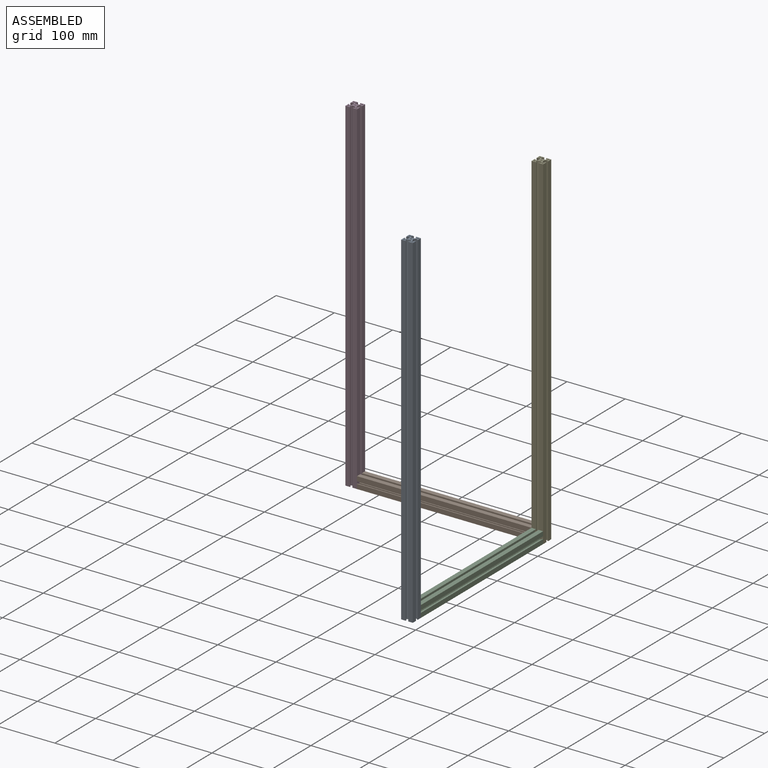
[diagram: assembled view]
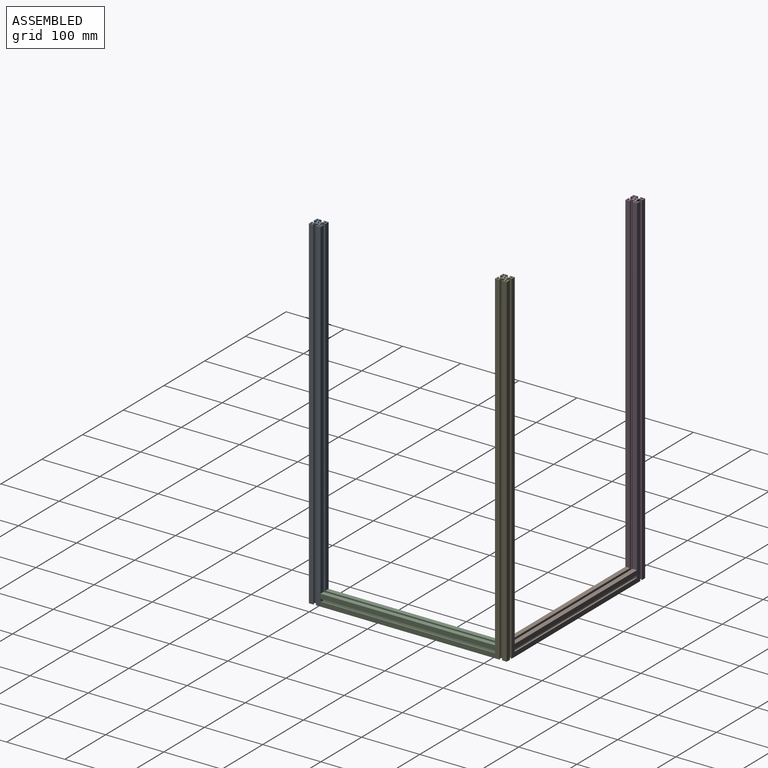
[diagram: assembled view, second angle]
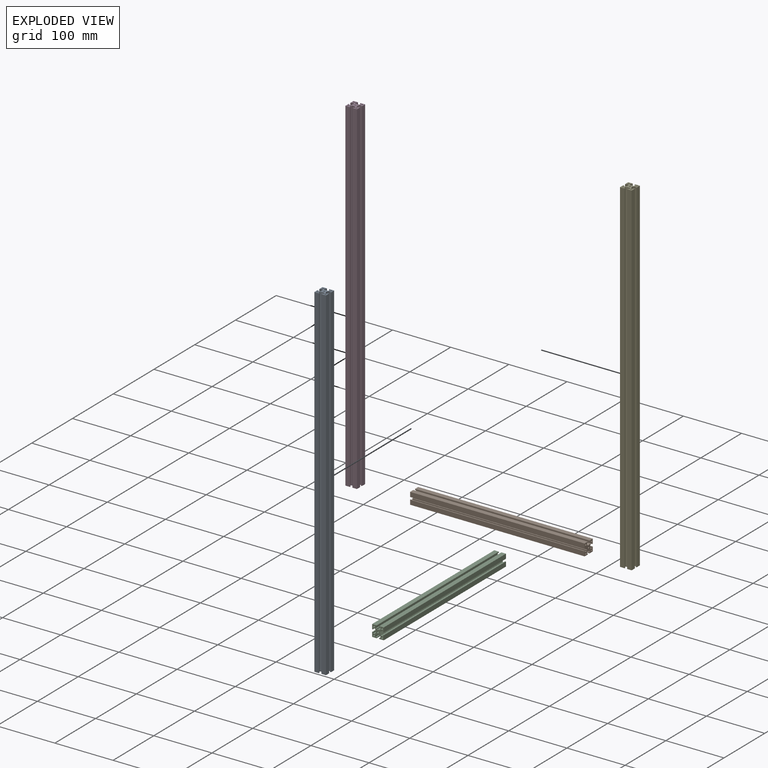
[diagram: exploded view]
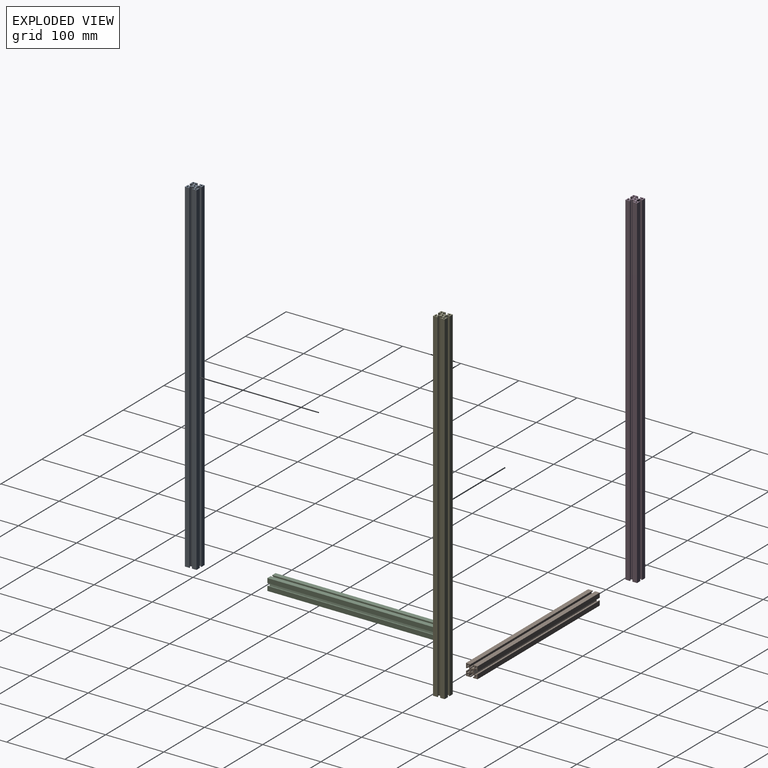
[diagram: exploded view, second angle]
ASSEMBLY  parts=5 mates=12
PART A: 51 faces, bbox 20x20x590 mm
  f0: plane 590x7.85mm, normal (1,0,0), area 4631.5mm2, adj f1,f47,f49,f50
  f1: plane 590x7.85mm, normal (0,1,0), area 4631.5mm2, adj f0,f2,f49,f50
  f2: plane 590x1.5mm, normal (-1,0,0), area 885mm2, adj f1,f3,f49,f50
  f3: plane 590x2mm, normal (0,-1,0), area 1180mm2, adj f2,f4,f49,f50
  f4: plane 590x3.7mm, normal (-1,0,0), area 2183mm2, adj f3,f5,f49,f50
  f5: plane 590x6.3mm, normal (-0.23,0.97,0), area 3820.9mm2, adj f4,f6,f49,f50
  f6: plane 590x1.5mm, normal (1,0,0), area 885mm2, adj f5,f7,f49,f50
  f7: plane 590x2mm, normal (0,1,0), area 1180mm2, adj f6,f8,f49,f50
  f8: plane 590x3.7mm, normal (1,0,0), area 2183mm2, adj f7,f9,f49,f50
  f9: plane 590x2mm, normal (0,-1,0), area 1180mm2, adj f8,f10,f49,f50
  f10: plane 590x1.5mm, normal (1,0,0), area 885mm2, adj f9,f11,f49,f50
  f11: plane 590x7.85mm, normal (0,1,0), area 4631.5mm2, adj f10,f12,f49,f50
  f12: plane 590x7.85mm, normal (-1,0,0), area 4631.5mm2, adj f11,f13,f49,f50
  f13: plane 590x1.5mm, normal (0,-1,0), area 885mm2, adj f12,f14,f49,f50
  f14: plane 590x2mm, normal (1,0,0), area 1180mm2, adj f13,f15,f49,f50
  f15: plane 590x3.7mm, normal (0,-1,0), area 2183mm2, adj f14,f16,f49,f50
  f16: plane 590x6.3mm, normal (-0.97,-0.23,0), area 3820.9mm2, adj f15,f17,f49,f50
  f17: plane 590x1.5mm, normal (0,1,0), area 885mm2, adj f16,f18,f49,f50
  f18: plane 590x2mm, normal (-1,0,0), area 1180mm2, adj f17,f19,f49,f50
  f19: plane 590x3.7mm, normal (0,1,0), area 2183mm2, adj f18,f20,f49,f50
  f20: plane 590x2mm, normal (1,0,0), area 1180mm2, adj f19,f21,f49,f50
  f21: plane 590x1.5mm, normal (0,1,0), area 885mm2, adj f20,f22,f49,f50
  f22: plane 590x7.85mm, normal (-1,0,0), area 4631.5mm2, adj f21,f23,f49,f50
  f23: plane 590x7.85mm, normal (0,-1,0), area 4631.5mm2, adj f22,f24,f49,f50
  f24: plane 590x1.5mm, normal (1,0,0), area 885mm2, adj f23,f25,f49,f50
  f25: plane 590x2mm, normal (0,1,0), area 1180mm2, adj f24,f26,f49,f50
  f26: plane 590x3.7mm, normal (1,0,0), area 2183mm2, adj f25,f27,f49,f50
  f27: plane 590x6.3mm, normal (0.23,-0.97,0), area 3820.9mm2, adj f26,f28,f49,f50
  f28: plane 590x1.5mm, normal (-1,0,0), area 885mm2, adj f27,f29,f49,f50
  f29: plane 590x2mm, normal (0,-1,0), area 1180mm2, adj f28,f30,f49,f50
  f30: plane 590x3.7mm, normal (-1,0,0), area 2183mm2, adj f29,f31,f49,f50
  f31: plane 590x2mm, normal (0,1,0), area 1180mm2, adj f30,f32,f49,f50
  f32: plane 590x1.5mm, normal (-1,0,0), area 885mm2, adj f31,f33,f49,f50
  f33: plane 590x7.85mm, normal (0,-1,0), area 4631.5mm2, adj f32,f34,f49,f50
  f34: plane 590x7.85mm, normal (1,0,0), area 4631.5mm2, adj f33,f35,f49,f50
  f35: plane 590x1.5mm, normal (0,1,0), area 885mm2, adj f34,f36,f49,f50
  f36: plane 590x2mm, normal (-1,0,0), area 1180mm2, adj f35,f37,f49,f50
  f37: plane 590x3.7mm, normal (0,1,0), area 2183mm2, adj f36,f38,f49,f50
  f38: plane 590x6.3mm, normal (0.97,0.23,0), area 3820.9mm2, adj f37,f39,f49,f50
  f39: plane 590x1.5mm, normal (0,-1,0), area 885mm2, adj f38,f40,f49,f50
  f40: plane 590x2mm, normal (1,0,0), area 1180mm2, adj f39,f41,f49,f50
  f41: plane 590x3.7mm, normal (0,-1,0), area 2183mm2, adj f40,f42,f49,f50
  f42: plane 590x2mm, normal (-1,0,0), area 1180mm2, adj f41,f47,f49,f50
  f43: cylinder r=1.5mm len=590mm, axis (0,0,-1), area 5560.6mm2, adj f49,f50
  f44: cylinder r=1.5mm len=590mm, axis (0,0,-1), area 5560.6mm2, adj f49,f50
  f45: cylinder r=1.5mm len=590mm, axis (0,0,-1), area 5560.6mm2, adj f49,f50
  f46: cylinder r=1.5mm len=590mm, axis (0,0,-1), area 5560.6mm2, adj f49,f50
  f47: plane 590x1.5mm, normal (0,-1,0), area 885mm2, adj f0,f42,f49,f50
  f48: cylinder r=1.5mm len=590mm, axis (0,0,-1), area 5560.6mm2, adj f49,f50
  f49: plane 20x20mm, normal (0,0,1), area 197.1mm2, adj f0,f1,f2,f3,f4,f5,f6,f7
  f50: plane 20x20mm, normal (0,0,-1), area 197.1mm2, adj f0,f1,f2,f3,f4,f5,f6,f7
PART B: 51 faces, bbox 20x20x300 mm
  f0: plane 300x7.85mm, normal (1,0,0), area 2355mm2, adj f1,f47,f49,f50
  f1: plane 300x7.85mm, normal (0,1,0), area 2355mm2, adj f0,f2,f49,f50
  f2: plane 300x1.5mm, normal (-1,0,0), area 450mm2, adj f1,f3,f49,f50
  f3: plane 300x2mm, normal (0,-1,0), area 600mm2, adj f2,f4,f49,f50
  f4: plane 300x3.7mm, normal (-1,0,0), area 1110mm2, adj f3,f5,f49,f50
  f5: plane 300x6.3mm, normal (-0.23,0.97,0), area 1942.8mm2, adj f4,f6,f49,f50
  f6: plane 300x1.5mm, normal (1,0,0), area 450mm2, adj f5,f7,f49,f50
  f7: plane 300x2mm, normal (0,1,0), area 600mm2, adj f6,f8,f49,f50
  f8: plane 300x3.7mm, normal (1,0,0), area 1110mm2, adj f7,f9,f49,f50
  f9: plane 300x2mm, normal (0,-1,0), area 600mm2, adj f8,f10,f49,f50
  f10: plane 300x1.5mm, normal (1,0,0), area 450mm2, adj f9,f11,f49,f50
  f11: plane 300x7.85mm, normal (0,1,0), area 2355mm2, adj f10,f12,f49,f50
  f12: plane 300x7.85mm, normal (-1,0,0), area 2355mm2, adj f11,f13,f49,f50
  f13: plane 300x1.5mm, normal (0,-1,0), area 450mm2, adj f12,f14,f49,f50
  f14: plane 300x2mm, normal (1,0,0), area 600mm2, adj f13,f15,f49,f50
  f15: plane 300x3.7mm, normal (0,-1,0), area 1110mm2, adj f14,f16,f49,f50
  f16: plane 300x6.3mm, normal (-0.97,-0.23,0), area 1942.8mm2, adj f15,f17,f49,f50
  f17: plane 300x1.5mm, normal (0,1,0), area 450mm2, adj f16,f18,f49,f50
  f18: plane 300x2mm, normal (-1,0,0), area 600mm2, adj f17,f19,f49,f50
  f19: plane 300x3.7mm, normal (0,1,0), area 1110mm2, adj f18,f20,f49,f50
  f20: plane 300x2mm, normal (1,0,0), area 600mm2, adj f19,f21,f49,f50
  f21: plane 300x1.5mm, normal (0,1,0), area 450mm2, adj f20,f22,f49,f50
  f22: plane 300x7.85mm, normal (-1,0,0), area 2355mm2, adj f21,f23,f49,f50
  f23: plane 300x7.85mm, normal (0,-1,0), area 2355mm2, adj f22,f24,f49,f50
  f24: plane 300x1.5mm, normal (1,0,0), area 450mm2, adj f23,f25,f49,f50
  f25: plane 300x2mm, normal (0,1,0), area 600mm2, adj f24,f26,f49,f50
  f26: plane 300x3.7mm, normal (1,0,0), area 1110mm2, adj f25,f27,f49,f50
  f27: plane 300x6.3mm, normal (0.23,-0.97,0), area 1942.8mm2, adj f26,f28,f49,f50
  f28: plane 300x1.5mm, normal (-1,0,0), area 450mm2, adj f27,f29,f49,f50
  f29: plane 300x2mm, normal (0,-1,0), area 600mm2, adj f28,f30,f49,f50
  f30: plane 300x3.7mm, normal (-1,0,0), area 1110mm2, adj f29,f31,f49,f50
  f31: plane 300x2mm, normal (0,1,0), area 600mm2, adj f30,f32,f49,f50
  f32: plane 300x1.5mm, normal (-1,0,0), area 450mm2, adj f31,f33,f49,f50
  f33: plane 300x7.85mm, normal (0,-1,0), area 2355mm2, adj f32,f34,f49,f50
  f34: plane 300x7.85mm, normal (1,0,0), area 2355mm2, adj f33,f35,f49,f50
  f35: plane 300x1.5mm, normal (0,1,0), area 450mm2, adj f34,f36,f49,f50
  f36: plane 300x2mm, normal (-1,0,0), area 600mm2, adj f35,f37,f49,f50
  f37: plane 300x3.7mm, normal (0,1,0), area 1110mm2, adj f36,f38,f49,f50
  f38: plane 300x6.3mm, normal (0.97,0.23,0), area 1942.8mm2, adj f37,f39,f49,f50
  f39: plane 300x1.5mm, normal (0,-1,0), area 450mm2, adj f38,f40,f49,f50
  f40: plane 300x2mm, normal (1,0,0), area 600mm2, adj f39,f41,f49,f50
  f41: plane 300x3.7mm, normal (0,-1,0), area 1110mm2, adj f40,f42,f49,f50
  f42: plane 300x2mm, normal (-1,0,0), area 600mm2, adj f41,f47,f49,f50
  f43: cylinder r=1.5mm len=300mm, axis (0,0,-1), area 2827.4mm2, adj f49,f50
  f44: cylinder r=1.5mm len=300mm, axis (0,0,-1), area 2827.4mm2, adj f49,f50
  f45: cylinder r=1.5mm len=300mm, axis (0,0,-1), area 2827.4mm2, adj f49,f50
  f46: cylinder r=1.5mm len=300mm, axis (0,0,-1), area 2827.4mm2, adj f49,f50
  f47: plane 300x1.5mm, normal (0,-1,0), area 450mm2, adj f0,f42,f49,f50
  f48: cylinder r=1.5mm len=300mm, axis (0,0,-1), area 2827.4mm2, adj f49,f50
  f49: plane 20x20mm, normal (0,0,1), area 197.1mm2, adj f0,f1,f2,f3,f4,f5,f6,f7
  f50: plane 20x20mm, normal (0,0,-1), area 197.1mm2, adj f0,f1,f2,f3,f4,f5,f6,f7
PART C: same geometry as B
PART D: 51 faces, bbox 20x20x590 mm
  f0: plane 590x7.85mm, normal (1,0,0), area 4631.5mm2, adj f1,f47,f49,f50
  f1: plane 590x7.85mm, normal (0,1,0), area 4631.5mm2, adj f0,f2,f49,f50
  f2: plane 590x1.5mm, normal (-1,0,0), area 885mm2, adj f1,f3,f49,f50
  f3: plane 590x2mm, normal (0,-1,0), area 1180mm2, adj f2,f4,f49,f50
  f4: plane 590x3.7mm, normal (-1,0,0), area 2183mm2, adj f3,f5,f49,f50
  f5: plane 590x6.3mm, normal (-0.23,0.97,0), area 3820.9mm2, adj f4,f6,f49,f50
  f6: plane 590x1.5mm, normal (1,0,0), area 885mm2, adj f5,f7,f49,f50
  f7: plane 590x2mm, normal (0,1,0), area 1180mm2, adj f6,f8,f49,f50
  f8: plane 590x3.7mm, normal (1,0,0), area 2183mm2, adj f7,f9,f49,f50
  f9: plane 590x2mm, normal (0,-1,0), area 1180mm2, adj f8,f10,f49,f50
  f10: plane 590x1.5mm, normal (1,0,0), area 885mm2, adj f9,f11,f49,f50
  f11: plane 590x7.85mm, normal (0,1,0), area 4631.5mm2, adj f10,f12,f49,f50
  f12: plane 590x7.85mm, normal (-1,0,0), area 4631.5mm2, adj f11,f13,f49,f50
  f13: plane 590x1.5mm, normal (0,-1,0), area 885mm2, adj f12,f14,f49,f50
  f14: plane 590x2mm, normal (1,0,0), area 1180mm2, adj f13,f15,f49,f50
  f15: plane 590x3.7mm, normal (0,-1,0), area 2183mm2, adj f14,f16,f49,f50
  f16: plane 590x6.3mm, normal (-0.97,-0.23,0), area 3820.9mm2, adj f15,f17,f49,f50
  f17: plane 590x1.5mm, normal (0,1,0), area 885mm2, adj f16,f18,f49,f50
  f18: plane 590x2mm, normal (-1,0,0), area 1180mm2, adj f17,f19,f49,f50
  f19: plane 590x3.7mm, normal (0,1,0), area 2183mm2, adj f18,f20,f49,f50
  f20: plane 590x2mm, normal (1,0,0), area 1180mm2, adj f19,f21,f49,f50
  f21: plane 590x1.5mm, normal (0,1,0), area 885mm2, adj f20,f22,f49,f50
  f22: plane 590x7.85mm, normal (-1,0,0), area 4631.5mm2, adj f21,f23,f49,f50
  f23: plane 590x7.85mm, normal (0,-1,0), area 4631.5mm2, adj f22,f24,f49,f50
  f24: plane 590x1.5mm, normal (1,0,0), area 885mm2, adj f23,f25,f49,f50
  f25: plane 590x2mm, normal (0,1,0), area 1180mm2, adj f24,f26,f49,f50
  f26: plane 590x3.7mm, normal (1,0,0), area 2183mm2, adj f25,f27,f49,f50
  f27: plane 590x6.3mm, normal (0.23,-0.97,0), area 3820.9mm2, adj f26,f28,f49,f50
  f28: plane 590x1.5mm, normal (-1,0,0), area 885mm2, adj f27,f29,f49,f50
  f29: plane 590x2mm, normal (0,-1,0), area 1180mm2, adj f28,f30,f49,f50
  f30: plane 590x3.7mm, normal (-1,0,0), area 2183mm2, adj f29,f31,f49,f50
  f31: plane 590x2mm, normal (0,1,0), area 1180mm2, adj f30,f32,f49,f50
  f32: plane 590x1.5mm, normal (-1,0,0), area 885mm2, adj f31,f33,f49,f50
  f33: plane 590x7.85mm, normal (0,-1,0), area 4631.5mm2, adj f32,f34,f49,f50
  f34: plane 590x7.85mm, normal (1,0,0), area 4631.5mm2, adj f33,f35,f49,f50
  f35: plane 590x1.5mm, normal (0,1,0), area 885mm2, adj f34,f36,f49,f50
  f36: plane 590x2mm, normal (-1,0,0), area 1180mm2, adj f35,f37,f49,f50
  f37: plane 590x3.7mm, normal (0,1,0), area 2183mm2, adj f36,f38,f49,f50
  f38: plane 590x6.3mm, normal (0.97,0.23,0), area 3820.9mm2, adj f37,f39,f49,f50
  f39: plane 590x1.5mm, normal (0,-1,0), area 885mm2, adj f38,f40,f49,f50
  f40: plane 590x2mm, normal (1,0,0), area 1180mm2, adj f39,f41,f49,f50
  f41: plane 590x3.7mm, normal (0,-1,0), area 2183mm2, adj f40,f42,f49,f50
  f42: plane 590x2mm, normal (-1,0,0), area 1180mm2, adj f41,f47,f49,f50
  f43: cylinder r=1.5mm len=590mm, axis (0,0,-1), area 5560.6mm2, adj f49,f50
  f44: cylinder r=1.5mm len=590mm, axis (0,0,-1), area 5560.6mm2, adj f49,f50
  f45: cylinder r=1.5mm len=590mm, axis (0,0,-1), area 5560.6mm2, adj f49,f50
  f46: cylinder r=1.5mm len=590mm, axis (0,0,-1), area 5560.6mm2, adj f49,f50
  f47: plane 590x1.5mm, normal (0,-1,0), area 885mm2, adj f0,f42,f49,f50
  f48: cylinder r=1.5mm len=590mm, axis (0,0,-1), area 5560.6mm2, adj f49,f50
  f49: plane 20x20mm, normal (0,0,1), area 197.1mm2, adj f0,f1,f2,f3,f4,f5,f6,f7
  f50: plane 20x20mm, normal (0,0,-1), area 197.1mm2, adj f0,f1,f2,f3,f4,f5,f6,f7
PART E: 51 faces, bbox 20x20x590 mm
  f0: plane 590x7.85mm, normal (1,0,0), area 4631.5mm2, adj f1,f47,f49,f50
  f1: plane 590x7.85mm, normal (0,1,0), area 4631.5mm2, adj f0,f2,f49,f50
  f2: plane 590x1.5mm, normal (-1,0,0), area 885mm2, adj f1,f3,f49,f50
  f3: plane 590x2mm, normal (0,-1,0), area 1180mm2, adj f2,f4,f49,f50
  f4: plane 590x3.7mm, normal (-1,0,0), area 2183mm2, adj f3,f5,f49,f50
  f5: plane 590x6.3mm, normal (-0.23,0.97,0), area 3820.9mm2, adj f4,f6,f49,f50
  f6: plane 590x1.5mm, normal (1,0,0), area 885mm2, adj f5,f7,f49,f50
  f7: plane 590x2mm, normal (0,1,0), area 1180mm2, adj f6,f8,f49,f50
  f8: plane 590x3.7mm, normal (1,0,0), area 2183mm2, adj f7,f9,f49,f50
  f9: plane 590x2mm, normal (0,-1,0), area 1180mm2, adj f8,f10,f49,f50
  f10: plane 590x1.5mm, normal (1,0,0), area 885mm2, adj f9,f11,f49,f50
  f11: plane 590x7.85mm, normal (0,1,0), area 4631.5mm2, adj f10,f12,f49,f50
  f12: plane 590x7.85mm, normal (-1,0,0), area 4631.5mm2, adj f11,f13,f49,f50
  f13: plane 590x1.5mm, normal (0,-1,0), area 885mm2, adj f12,f14,f49,f50
  f14: plane 590x2mm, normal (1,0,0), area 1180mm2, adj f13,f15,f49,f50
  f15: plane 590x3.7mm, normal (0,-1,0), area 2183mm2, adj f14,f16,f49,f50
  f16: plane 590x6.3mm, normal (-0.97,-0.23,0), area 3820.9mm2, adj f15,f17,f49,f50
  f17: plane 590x1.5mm, normal (0,1,0), area 885mm2, adj f16,f18,f49,f50
  f18: plane 590x2mm, normal (-1,0,0), area 1180mm2, adj f17,f19,f49,f50
  f19: plane 590x3.7mm, normal (0,1,0), area 2183mm2, adj f18,f20,f49,f50
  f20: plane 590x2mm, normal (1,0,0), area 1180mm2, adj f19,f21,f49,f50
  f21: plane 590x1.5mm, normal (0,1,0), area 885mm2, adj f20,f22,f49,f50
  f22: plane 590x7.85mm, normal (-1,0,0), area 4631.5mm2, adj f21,f23,f49,f50
  f23: plane 590x7.85mm, normal (0,-1,0), area 4631.5mm2, adj f22,f24,f49,f50
  f24: plane 590x1.5mm, normal (1,0,0), area 885mm2, adj f23,f25,f49,f50
  f25: plane 590x2mm, normal (0,1,0), area 1180mm2, adj f24,f26,f49,f50
  f26: plane 590x3.7mm, normal (1,0,0), area 2183mm2, adj f25,f27,f49,f50
  f27: plane 590x6.3mm, normal (0.23,-0.97,0), area 3820.9mm2, adj f26,f28,f49,f50
  f28: plane 590x1.5mm, normal (-1,0,0), area 885mm2, adj f27,f29,f49,f50
  f29: plane 590x2mm, normal (0,-1,0), area 1180mm2, adj f28,f30,f49,f50
  f30: plane 590x3.7mm, normal (-1,0,0), area 2183mm2, adj f29,f31,f49,f50
  f31: plane 590x2mm, normal (0,1,0), area 1180mm2, adj f30,f32,f49,f50
  f32: plane 590x1.5mm, normal (-1,0,0), area 885mm2, adj f31,f33,f49,f50
  f33: plane 590x7.85mm, normal (0,-1,0), area 4631.5mm2, adj f32,f34,f49,f50
  f34: plane 590x7.85mm, normal (1,0,0), area 4631.5mm2, adj f33,f35,f49,f50
  f35: plane 590x1.5mm, normal (0,1,0), area 885mm2, adj f34,f36,f49,f50
  f36: plane 590x2mm, normal (-1,0,0), area 1180mm2, adj f35,f37,f49,f50
  f37: plane 590x3.7mm, normal (0,1,0), area 2183mm2, adj f36,f38,f49,f50
  f38: plane 590x6.3mm, normal (0.97,0.23,0), area 3820.9mm2, adj f37,f39,f49,f50
  f39: plane 590x1.5mm, normal (0,-1,0), area 885mm2, adj f38,f40,f49,f50
  f40: plane 590x2mm, normal (1,0,0), area 1180mm2, adj f39,f41,f49,f50
  f41: plane 590x3.7mm, normal (0,-1,0), area 2183mm2, adj f40,f42,f49,f50
  f42: plane 590x2mm, normal (-1,0,0), area 1180mm2, adj f41,f47,f49,f50
  f43: cylinder r=1.5mm len=590mm, axis (0,0,-1), area 5560.6mm2, adj f49,f50
  f44: cylinder r=1.5mm len=590mm, axis (0,0,-1), area 5560.6mm2, adj f49,f50
  f45: cylinder r=1.5mm len=590mm, axis (0,0,-1), area 5560.6mm2, adj f49,f50
  f46: cylinder r=1.5mm len=590mm, axis (0,0,-1), area 5560.6mm2, adj f49,f50
  f47: plane 590x1.5mm, normal (0,-1,0), area 885mm2, adj f0,f42,f49,f50
  f48: cylinder r=1.5mm len=590mm, axis (0,0,-1), area 5560.6mm2, adj f49,f50
  f49: plane 20x20mm, normal (0,0,1), area 197.1mm2, adj f0,f1,f2,f3,f4,f5,f6,f7
  f50: plane 20x20mm, normal (0,0,-1), area 197.1mm2, adj f0,f1,f2,f3,f4,f5,f6,f7
PLACE A rot(axis=(0.15,0.76,0.63),0deg) t=(87.06,-392.79,283.51)mm
PLACE B rot(axis=(0,1,0),90deg) t=(77.06,-72.91,293.53)mm
PLACE C rot(axis=(1,0,0),90deg) t=(387.04,-82.79,293.39)mm
PLACE D rot(axis=(0,-1,0),180deg) t=(67.06,-372.79,873.51)mm
PLACE E rot(axis=(0.15,0.76,0.63),0deg) t=(387.06,-72.79,283.51)mm
MATE planar D.f48 <-> B.f0  axis (0,0,-1) through (67.06,-72.79,283.51)mm
MATE planar B.f49 <-> E.f12  axis (1,0,0) through (377.06,-69.49,295.66)mm
MATE planar C.f34 <-> A.f0  axis (1,0,0) through (397.06,-232.79,287.43)mm
MATE planar E.f50 <-> B.f0  axis (0,0,-1) through (388.06,-68.74,283.51)mm
MATE planar E.f34 <-> C.f34  axis (1,0,0) through (397.06,-78.87,578.51)mm
MATE planar C.f48 <-> A.f11  axis (0,-1,0) through (387.06,-382.79,293.51)mm
MATE planar D.f12 <-> B.f48  axis (1,0,0) through (77.06,-66.72,578.51)mm
MATE planar C.f23 <-> E.f48  axis (0,0,-1) through (380.98,-232.79,283.51)mm
MATE planar E.f33 <-> B.f23  axis (0,-1,0) through (393.13,-82.79,578.51)mm
MATE planar D.f11 <-> B.f1  axis (0,1,0) through (73.13,-62.79,578.51)mm
MATE planar A.f50 <-> C.f23  axis (0,0,-1) through (383.01,-391.79,283.51)mm
MATE planar C.f48 <-> E.f23  axis (0,1,0) through (387.06,-82.79,293.51)mm
